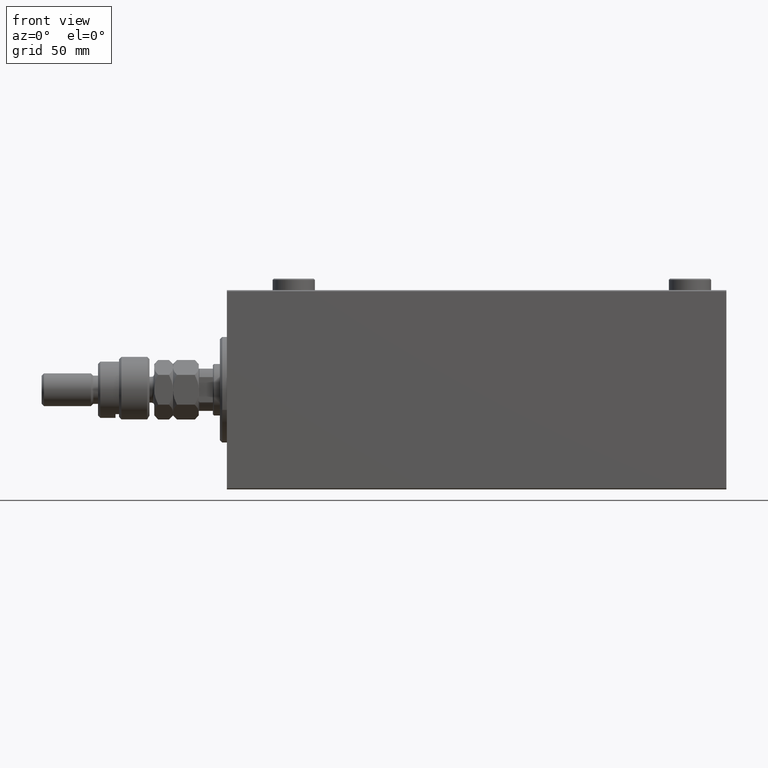
[diagram: clean part render]
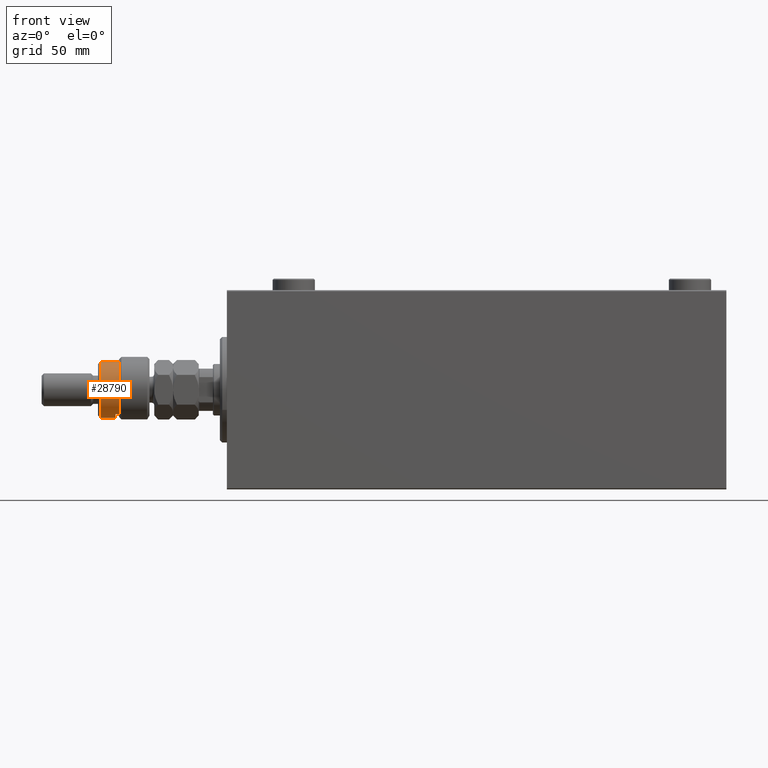
[diagram: same view with one face highlighted and labeled with its STEP entity id]
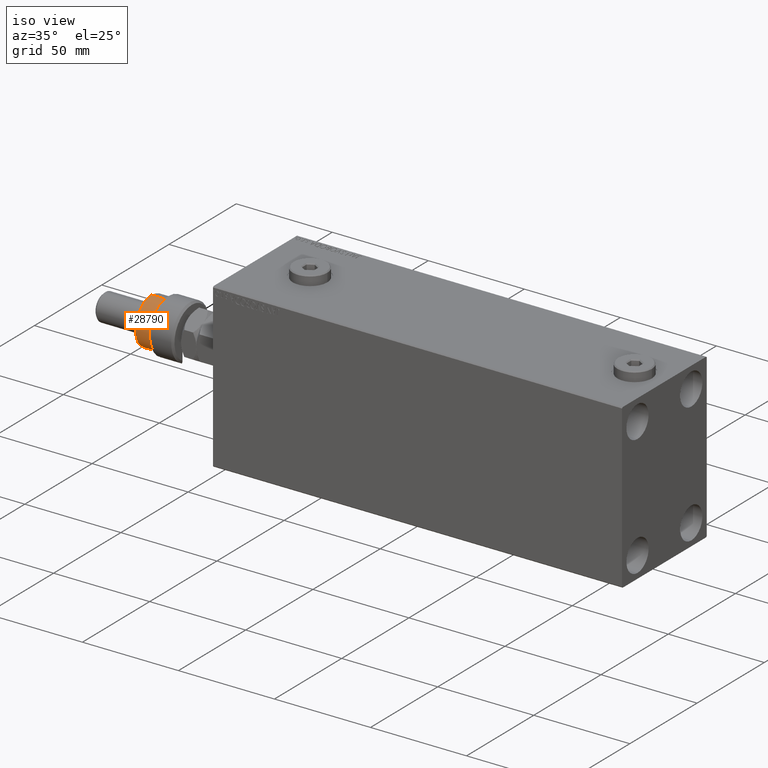
[diagram: same view with one face highlighted and labeled with its STEP entity id]
A machine part, front view. The second image highlights one B-rep face of the part: STEP entity #28790.
A second angle (iso view) of the same face is appended — the face is thin or edge-on in the first view.
In plain terms, the highlighted cylindrical surface (edge-blend (fillet) strip) has radius 12 mm, axis along (1, -0, -0).
Its self-contained STEP definition (entity closure, byte-faithful):
#106 = DIRECTION ( 'NONE',  ( 1.000000000000000000, 0.000000000000000000, 0.000000000000000000 ) ) ;
#864 = CARTESIAN_POINT ( 'NONE',  ( 0.000000000000000000, 0.000000000000000000, 20.99999999999999645 ) ) ;
#1082 = CARTESIAN_POINT ( 'NONE',  ( -10.39230484541326760, -6.000000000000000000, 13.00000000000000000 ) ) ;
#1267 = AXIS2_PLACEMENT_3D ( 'NONE', #864, #44350, #19317 ) ;
#2536 = EDGE_CURVE ( 'NONE', #47313, #38227, #47798, .T. ) ;
#3476 = EDGE_LOOP ( 'NONE', ( #35224, #27210, #9777, #45401, #37823, #47380 ) ) ;
#3750 = DIRECTION ( 'NONE',  ( 0.000000000000000000, 0.000000000000000000, 1.000000000000000000 ) ) ;
#5763 = EDGE_CURVE ( 'NONE', #32144, #38227, #17052, .T. ) ;
#6466 = DIRECTION ( 'NONE',  ( -0.000000000000000000, -0.000000000000000000, -1.000000000000000000 ) ) ;
#6793 = CIRCLE ( 'NONE', #19179, 12.00000000000000178 ) ;
#7878 = VERTEX_POINT ( 'NONE', #31677 ) ;
#9777 = ORIENTED_EDGE ( 'NONE', *, *, #44255, .T. ) ;
#10116 = LINE ( 'NONE', #39724, #37841 ) ;
#10928 = CARTESIAN_POINT ( 'NONE',  ( -12.00000000000000178, 0.000000000000000000, 14.50000000000000000 ) ) ;
#13230 = CYLINDRICAL_SURFACE ( 'NONE', #47183, 12.00000000000000178 ) ;
#13461 = DIRECTION ( 'NONE',  ( -0.000000000000000000, -0.000000000000000000, -1.000000000000000000 ) ) ;
#15729 = DIRECTION ( 'NONE',  ( -0.000000000000000000, -0.000000000000000000, -1.000000000000000000 ) ) ;
#17052 = LINE ( 'NONE', #28213, #33931 ) ;
#18844 = CARTESIAN_POINT ( 'NONE',  ( -10.39230484541326582, -5.999999999999998224, 14.50000000000000000 ) ) ;
#19179 = AXIS2_PLACEMENT_3D ( 'NONE', #44835, #44115, #29053 ) ;
#19317 = DIRECTION ( 'NONE',  ( 1.000000000000000000, 0.000000000000000000, 0.000000000000000000 ) ) ;
#22215 = VERTEX_POINT ( 'NONE', #10928 ) ;
#22640 = CARTESIAN_POINT ( 'NONE',  ( 12.00000000000000178, 1.469576158976824144E-15, 13.00000000000000000 ) ) ;
#23511 = CARTESIAN_POINT ( 'NONE',  ( -12.00000000000000178, 0.000000000000000000, 22.00000000000000000 ) ) ;
#24406 = CARTESIAN_POINT ( 'NONE',  ( 12.00000000000000178, 1.469576158976824144E-15, 20.99999999999999645 ) ) ;
#24727 = EDGE_CURVE ( 'NONE', #32144, #7878, #41576, .T. ) ;
#26659 = LINE ( 'NONE', #23511, #32346 ) ;
#27210 = ORIENTED_EDGE ( 'NONE', *, *, #24727, .T. ) ;
#27804 = CARTESIAN_POINT ( 'NONE',  ( 0.000000000000000000, 0.000000000000000000, 22.00000000000000000 ) ) ;
#28213 = CARTESIAN_POINT ( 'NONE',  ( 12.00000000000000178, 1.469576158976824144E-15, 22.00000000000000000 ) ) ;
#28271 = DIRECTION ( 'NONE',  ( -1.000000000000000000, 0.000000000000000000, 0.000000000000000000 ) ) ;
#28643 = EDGE_CURVE ( 'NONE', #29248, #22215, #6793, .T. ) ;
#28790 = ADVANCED_FACE ( 'NONE', ( #46024 ), #13230, .T. ) ;
#29053 = DIRECTION ( 'NONE',  ( -1.000000000000000000, 0.000000000000000000, 0.000000000000000000 ) ) ;
#29248 = VERTEX_POINT ( 'NONE', #18844 ) ;
#29291 = AXIS2_PLACEMENT_3D ( 'NONE', #33379, #3750, #106 ) ;
#31677 = CARTESIAN_POINT ( 'NONE',  ( -12.00000000000000178, 0.000000000000000000, 20.99999999999999645 ) ) ;
#32110 = DIRECTION ( 'NONE',  ( -0.000000000000000000, -0.000000000000000000, -1.000000000000000000 ) ) ;
#32144 = VERTEX_POINT ( 'NONE', #24406 ) ;
#32346 = VECTOR ( 'NONE', #15729, 1000.000000000000000 ) ;
#33379 = CARTESIAN_POINT ( 'NONE',  ( 0.000000000000000000, 0.000000000000000000, 13.00000000000000000 ) ) ;
#33931 = VECTOR ( 'NONE', #32110, 1000.000000000000000 ) ;
#35224 = ORIENTED_EDGE ( 'NONE', *, *, #5763, .F. ) ;
#37823 = ORIENTED_EDGE ( 'NONE', *, *, #46408, .T. ) ;
#37841 = VECTOR ( 'NONE', #6466, 1000.000000000000000 ) ;
#38227 = VERTEX_POINT ( 'NONE', #22640 ) ;
#39724 = CARTESIAN_POINT ( 'NONE',  ( -10.39230484541326760, -6.000000000000000000, 22.00000000000000000 ) ) ;
#41576 = CIRCLE ( 'NONE', #1267, 12.00000000000000178 ) ;
#44115 = DIRECTION ( 'NONE',  ( 0.000000000000000000, 0.000000000000000000, -1.000000000000000000 ) ) ;
#44255 = EDGE_CURVE ( 'NONE', #7878, #22215, #26659, .T. ) ;
#44350 = DIRECTION ( 'NONE',  ( 0.000000000000000000, 0.000000000000000000, -1.000000000000000000 ) ) ;
#44835 = CARTESIAN_POINT ( 'NONE',  ( 0.000000000000000000, 0.000000000000000000, 14.50000000000000000 ) ) ;
#45401 = ORIENTED_EDGE ( 'NONE', *, *, #28643, .F. ) ;
#46024 = FACE_OUTER_BOUND ( 'NONE', #3476, .T. ) ;
#46408 = EDGE_CURVE ( 'NONE', #29248, #47313, #10116, .T. ) ;
#47183 = AXIS2_PLACEMENT_3D ( 'NONE', #27804, #13461, #28271 ) ;
#47313 = VERTEX_POINT ( 'NONE', #1082 ) ;
#47380 = ORIENTED_EDGE ( 'NONE', *, *, #2536, .T. ) ;
#47798 = CIRCLE ( 'NONE', #29291, 12.00000000000000178 ) ;